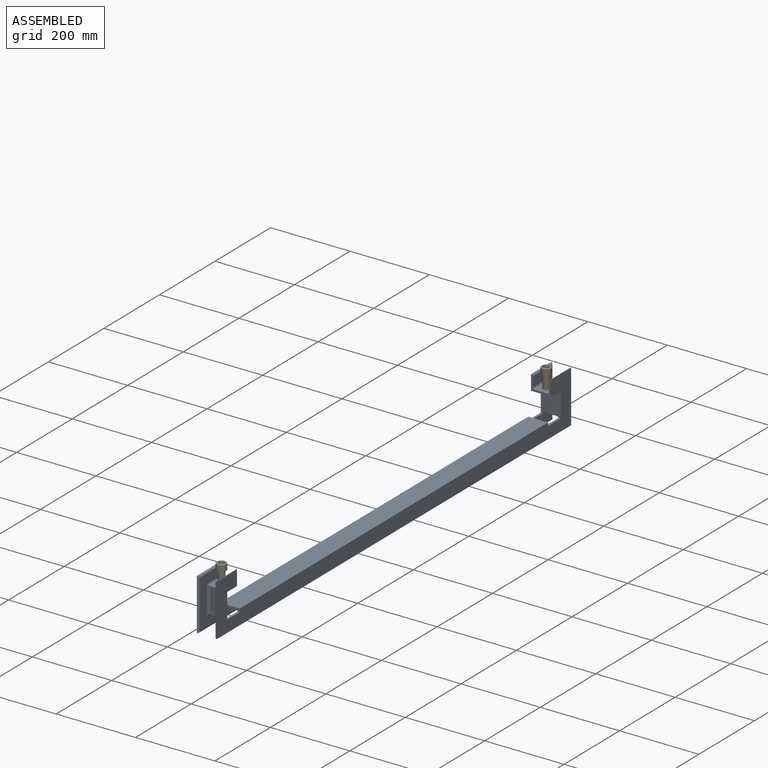
[diagram: assembled view]
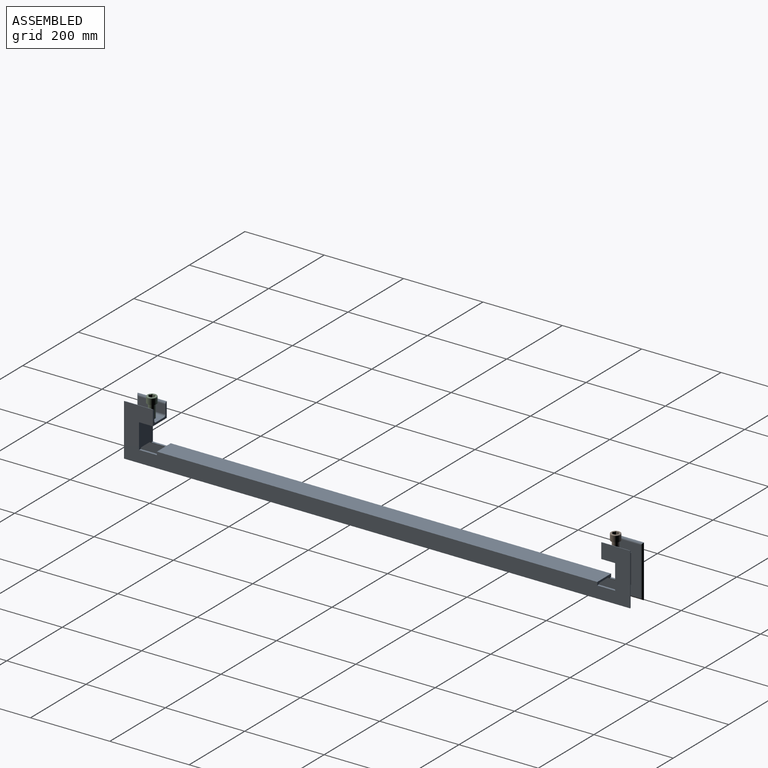
[diagram: assembled view, second angle]
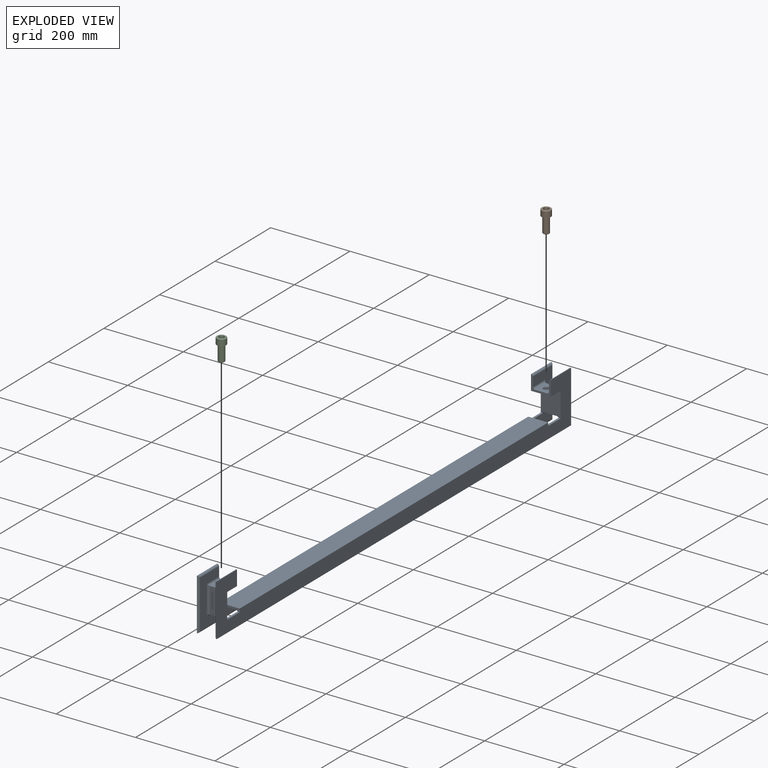
[diagram: exploded view]
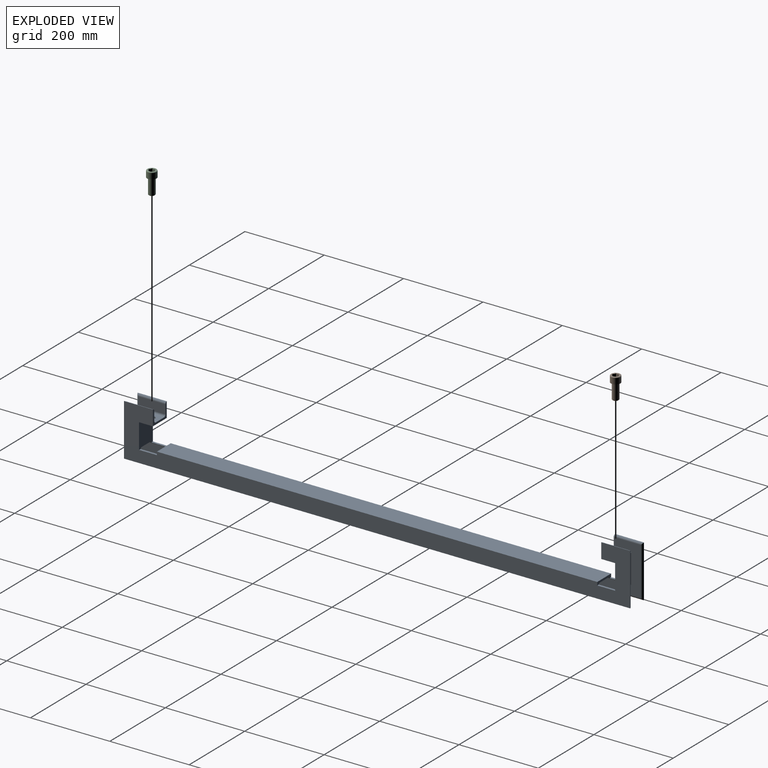
[diagram: exploded view, second angle]
ASSEMBLY  parts=3 mates=2
PART A: 46 faces, bbox 131x50x1276 mm
  f0: cylinder r=5mm len=1220mm, axis (0,0,1), area 9010.2mm2, adj f1,f2,f16,f20,f22,f25,f29,f31
  f1: plane 1110x30mm, normal (-1,0,0), area 33300mm2, adj f0,f3,f39,f43
  f2: plane 30x5mm, normal (-1,0,0), area 150mm2, adj f0,f3,f26,f29
  f3: cylinder r=5mm len=1220mm, axis (0,0,1), area 9010.2mm2, adj f1,f2,f18,f20,f22,f27,f29,f35
  f4: plane 1110x50mm, normal (1,0,0), area 55500mm2, adj f5,f6,f39,f43
  f5: plane 1276x131mm, normal (0,1,0), area 57496mm2, adj f4,f7,f8,f9,f10,f19,f20,f23
  f6: plane 1276x131mm, normal (0,-1,0), area 57496mm2, adj f4,f7,f8,f9,f14,f15,f20,f21
  f7: plane 50x38mm, normal (0,0,-1), area 580mm2, adj f5,f6,f9,f10,f11,f12,f13,f14
  f8: plane 50x38mm, normal (0,0,1), area 580mm2, adj f5,f6,f30,f31,f32,f33,f34,f35
  f9: plane 50x35mm, normal (-1,0,0), area 1596.1mm2, adj f5,f6,f7,f20,f45
  f10: cylinder r=5mm len=73mm, axis (0,0,-1), area 559.1mm2, adj f5,f7,f19,f35
  f11: cylinder r=5mm len=45mm, axis (0,0,-1), area 328.4mm2, adj f7,f12,f18,f35
  f12: plane 40x30mm, normal (1,0,0), area 1046.1mm2, adj f7,f11,f13,f17,f45
  f13: cylinder r=5mm len=45mm, axis (0,0,-1), area 328.4mm2, adj f7,f12,f16,f31
  f14: cylinder r=5mm len=73mm, axis (0,0,-1), area 559.1mm2, adj f6,f7,f15,f31
  f15: cylinder r=5mm len=131mm, axis (1,0,0), area 1000.3mm2, adj f6,f14,f21,f31
  f16: cylinder r=5mm len=75mm, axis (1,0,0), area 539mm2, adj f0,f13,f17,f31
  f17: plane 65x30mm, normal (0,0,1), area 1950mm2, adj f12,f16,f18,f22
  f18: cylinder r=5mm len=75mm, axis (1,0,0), area 539mm2, adj f3,f11,f17,f35
  f19: cylinder r=5mm len=131mm, axis (1,0,0), area 1000.3mm2, adj f5,f10,f23,f35
  f20: plane 63x50mm, normal (0,0,-1), area 3040.2mm2, adj f0,f3,f5,f6,f9,f22,f41,f42
  f21: cylinder r=5mm len=1276mm, axis (0,0,1), area 9993.1mm2, adj f6,f15,f24,f31
  f22: plane 30x5mm, normal (-1,0,0), area 150mm2, adj f0,f3,f17,f20
  f23: cylinder r=5mm len=1276mm, axis (0,0,1), area 9993.1mm2, adj f5,f19,f28,f35
  f24: cylinder r=5mm len=131mm, axis (-1,0,0), area 1000.3mm2, adj f6,f21,f30,f31
  f25: cylinder r=5mm len=75mm, axis (-1,0,0), area 539mm2, adj f0,f26,f31,f32
  f26: plane 65x30mm, normal (0,0,-1), area 1950mm2, adj f2,f25,f27,f33
  f27: cylinder r=5mm len=75mm, axis (-1,0,0), area 539mm2, adj f3,f26,f34,f35
  f28: cylinder r=5mm len=131mm, axis (-1,0,0), area 1000.3mm2, adj f5,f23,f35,f36
  f29: plane 63x50mm, normal (0,0,1), area 3040.2mm2, adj f0,f2,f3,f5,f6,f37,f38,f40
  f30: cylinder r=5mm len=73mm, axis (0,0,-1), area 559.1mm2, adj f6,f8,f24,f31
  f31: plane 1266x121mm, normal (0,1,0), area 35696mm2, adj f0,f7,f8,f13,f14,f15,f16,f21
  f32: cylinder r=5mm len=45mm, axis (0,0,-1), area 328.4mm2, adj f8,f25,f31,f33
  f33: plane 40x30mm, normal (1,0,0), area 1046.1mm2, adj f8,f26,f32,f34,f44
  f34: cylinder r=5mm len=45mm, axis (0,0,-1), area 328.4mm2, adj f8,f27,f33,f35
  f35: plane 1266x121mm, normal (0,-1,0), area 35696mm2, adj f3,f7,f8,f10,f11,f18,f19,f23
  f36: cylinder r=5mm len=73mm, axis (0,0,-1), area 559.1mm2, adj f5,f8,f28,f35
  f37: plane 50x35mm, normal (-1,0,0), area 1596.1mm2, adj f5,f6,f8,f29,f44
  f38: plane 45x5.42mm, normal (1,0,0), area 243.8mm2, adj f0,f6,f29,f39
  f39: plane 50x8mm, normal (0,0,-1), area 290.2mm2, adj f0,f1,f3,f4,f5,f6,f38,f40
  f40: plane 45x5.42mm, normal (1,0,0), area 243.8mm2, adj f3,f5,f29,f39
  f41: plane 45x5.42mm, normal (1,0,0), area 243.8mm2, adj f0,f6,f20,f43
  f42: plane 45x5.42mm, normal (1,0,0), area 243.8mm2, adj f3,f5,f20,f43
  f43: plane 50x8mm, normal (0,0,1), area 290.2mm2, adj f0,f1,f3,f4,f5,f6,f41,f42
  f44: cylinder r=7mm len=14mm, axis (1,0,0), area 219.9mm2, adj f33,f37
  f45: cylinder r=7mm len=14mm, axis (1,0,0), area 219.9mm2, adj f9,f12
PART B: 29 faces, bbox 56x26x26 mm
  f0: plane 6.06x3.5mm, normal (-1,0,0), area 2.6mm2, adj f21,f22,f28
  f1: plane 7x2.02mm, normal (-1,0,0), area 2.6mm2, adj f22,f23,f28
  f2: plane 6.06x3.5mm, normal (-1,0,0), area 2.6mm2, adj f23,f24,f28
  f3: plane 6.06x3.5mm, normal (-1,0,0), area 2.6mm2, adj f24,f25,f28
  f4: plane 7x2.02mm, normal (-1,0,0), area 2.6mm2, adj f25,f26,f28
  f5: cone r=8.02mm half-angle=60deg, axis (-1,0,0), area 6.2mm2, adj f11,f21
  f6: cone r=8.02mm half-angle=60deg, axis (-1,0,0), area 6.2mm2, adj f11,f22
  f7: cone r=8.02mm half-angle=60deg, axis (-1,0,0), area 6.2mm2, adj f11,f23
  f8: cone r=8.02mm half-angle=60deg, axis (-1,0,0), area 6.2mm2, adj f11,f24
  f9: cone r=8.02mm half-angle=60deg, axis (-1,0,0), area 6.2mm2, adj f11,f25
  f10: cone r=8.02mm half-angle=60deg, axis (-1,0,0), area 6.2mm2, adj f11,f26
  f11: plane 20.8x20.8mm, normal (-1,0,0), area 137.7mm2, adj f5,f6,f7,f8,f9,f10,f20,f21
  f12: cone r=8.01mm half-angle=11.1deg, axis (-1,0,0), area 66.2mm2, adj f13,f17
  f13: torus R=8.6mm, axis (1,0,0), area 5.9mm2, adj f12,f16
  f14: plane 13.55x13.55mm, normal (1,0,0), area 144.1mm2, adj f15
  f15: cone r=8mm half-angle=45deg, axis (-1,0,0), area 80.5mm2, adj f14,f16
  f16: cylinder r=8mm len=36.9mm, axis (1,0,0), area 1854.9mm2, adj f13,f15
  f17: torus R=8.85mm, axis (1,0,0), area 44.1mm2, adj f12,f19
  f18: cylinder r=12mm len=24mm, axis (1,0,0), area 1085.7mm2, adj f19,f20
  f19: plane 24x24mm, normal (1,0,0), area 206.3mm2, adj f17,f18
  f20: torus R=10.4mm, axis (1,0,0), area 180.3mm2, adj f11,f18
  f21: plane 8.08x8mm, normal (0,0,-1), area 61.6mm2, adj f0,f5,f11,f22,f26,f27
  f22: plane 8x7mm, normal (0,0.87,-0.5), area 61.6mm2, adj f0,f1,f6,f11,f21,f23
  f23: plane 8x7mm, normal (0,0.87,0.5), area 61.6mm2, adj f1,f2,f7,f11,f22,f24
  f24: plane 8.08x8mm, normal (0,0,1), area 61.6mm2, adj f2,f3,f8,f11,f23,f25
  f25: plane 8x7mm, normal (0,-0.87,0.5), area 61.6mm2, adj f3,f4,f9,f11,f24,f26
  f26: plane 8x7mm, normal (0,-0.87,-0.5), area 61.6mm2, adj f4,f10,f11,f21,f25,f27
  f27: plane 6.06x3.5mm, normal (-1,0,0), area 2.6mm2, adj f21,f26,f28
  f28: cone r=7mm half-angle=60deg, axis (-1,0,0), area 177.8mm2, adj f0,f1,f2,f3,f4,f27
PART C: same geometry as B
PLACE A rot(axis=(-0.58,-0.58,-0.58),120deg) t=(235.73,-871.52,183.21)mm
PLACE B rot(axis=(0,1,0),90deg) t=(260.73,277.33,221.98)mm
PLACE C rot(axis=(0,1,0),90deg) t=(260.73,-891.69,221.98)mm
MATE cylindrical C.f5 <-> A.f33  axis (0,0,-1) through (260.73,-891.69,183.21)mm
MATE cylindrical B.f5 <-> A.f45  axis (0,0,-1) through (260.73,277.33,183.21)mm
